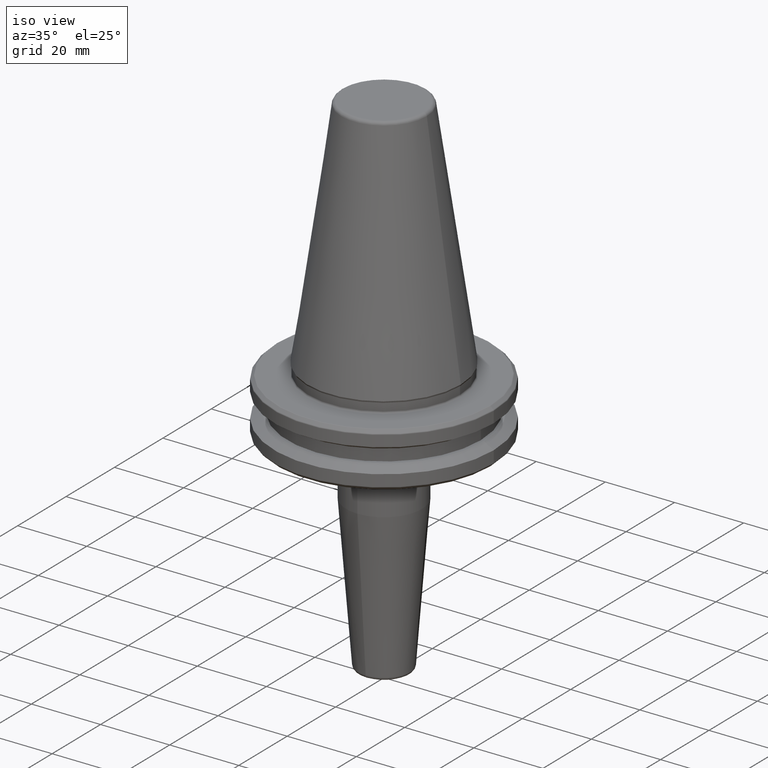
[diagram: clean part render]
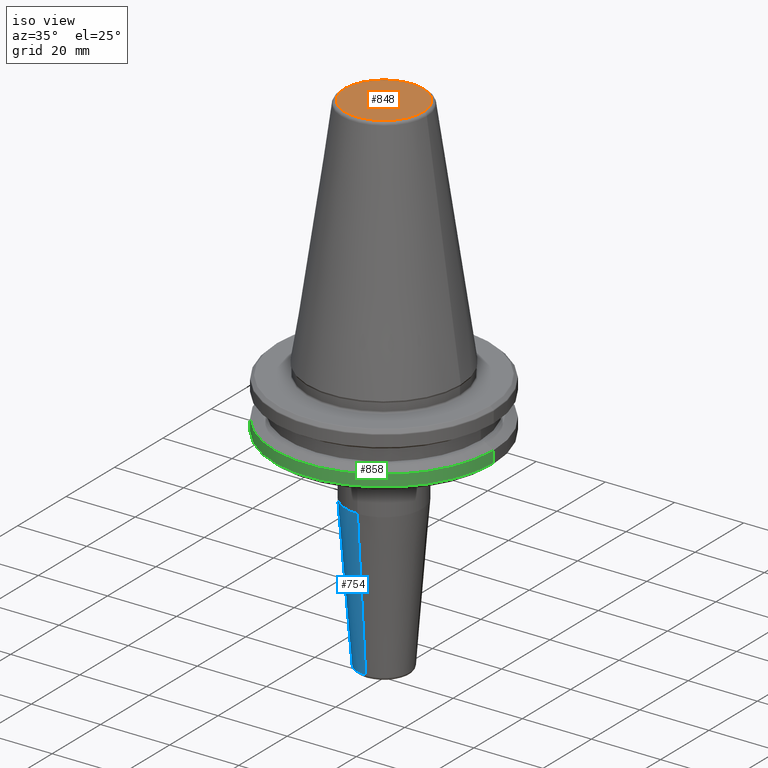
[diagram: same view with three faces highlighted in distinct colors, each labeled with its STEP entity id]
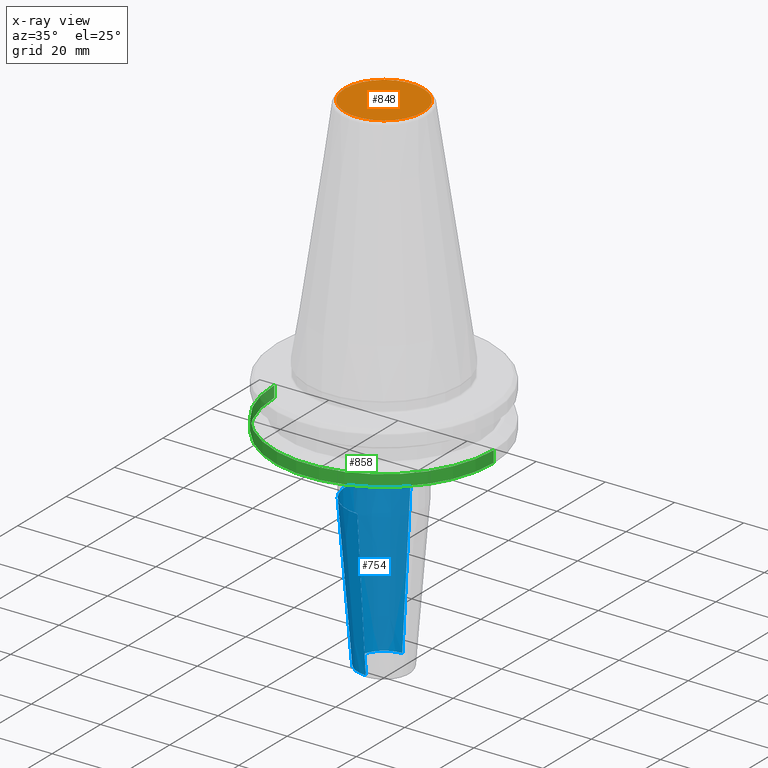
[diagram: x-ray of the same camera — body ghosted, the three highlighted faces saturated]
A machine part, iso view with three faces highlighted in distinct colors.
The next image is the same camera in x-ray (body ghosted, the three faces saturated) — at least one of them is partly hidden behind the body in this view.
Their STEP definitions:

[orange] entity #848 — the highlighted planar face has unit normal (0, -0, 1).
#76 = EDGE_CURVE ( 'NONE', #694, #282, #753, .T. ) ;
#107 = CARTESIAN_POINT ( 'NONE',  ( 0.0000000000000000000, 0.0000000000000000000, 68.40000000000000600 ) ) ;
#167 = FACE_OUTER_BOUND ( 'NONE', #310, .T. ) ;
#212 = DIRECTION ( 'NONE',  ( 1.000000000000000000, 0.0000000000000000000, 0.0000000000000000000 ) ) ;
#282 = VERTEX_POINT ( 'NONE', #327 ) ;
#310 = EDGE_LOOP ( 'NONE', ( #809, #1093 ) ) ;
#327 = CARTESIAN_POINT ( 'NONE',  ( -11.38516258961893100, 1.454871700296352000E-015, 68.40000000000000600 ) ) ;
#452 = AXIS2_PLACEMENT_3D ( 'NONE', #474, #1135, #563 ) ;
#474 = CARTESIAN_POINT ( 'NONE',  ( 0.0000000000000000000, -8.337524199435086500E-014, 68.39999999999999100 ) ) ;
#563 = DIRECTION ( 'NONE',  ( 1.000000000000000000, 0.0000000000000000000, 0.0000000000000000000 ) ) ;
#622 = CIRCLE ( 'NONE', #1229, 11.38516258961893100 ) ;
#694 = VERTEX_POINT ( 'NONE', #1122 ) ;
#753 = CIRCLE ( 'NONE', #935, 11.38516258961893100 ) ;
#781 = DIRECTION ( 'NONE',  ( -0.0000000000000000000, -0.0000000000000000000, 1.000000000000000000 ) ) ;
#796 = DIRECTION ( 'NONE',  ( -0.0000000000000000000, -0.0000000000000000000, 1.000000000000000000 ) ) ;
#809 = ORIENTED_EDGE ( 'NONE', *, *, #76, .T. ) ;
#848 = ADVANCED_FACE ( 'NONE', ( #167 ), #1035, .T. ) ;
#871 = DIRECTION ( 'NONE',  ( 1.000000000000000000, 0.0000000000000000000, 0.0000000000000000000 ) ) ;
#884 = CARTESIAN_POINT ( 'NONE',  ( 0.0000000000000000000, 0.0000000000000000000, 68.40000000000000600 ) ) ;
#935 = AXIS2_PLACEMENT_3D ( 'NONE', #884, #796, #871 ) ;
#1035 = PLANE ( 'NONE',  #452 ) ;
#1093 = ORIENTED_EDGE ( 'NONE', *, *, #1182, .T. ) ;
#1122 = CARTESIAN_POINT ( 'NONE',  ( 11.38516258961893100, 0.0000000000000000000, 68.40000000000000600 ) ) ;
#1135 = DIRECTION ( 'NONE',  ( 0.0000000000000000000, -0.0000000000000000000, 1.000000000000000000 ) ) ;
#1182 = EDGE_CURVE ( 'NONE', #282, #694, #622, .T. ) ;
#1229 = AXIS2_PLACEMENT_3D ( 'NONE', #107, #781, #212 ) ;

[blue] entity #754 — the highlighted conical surface has half-angle 4.5 deg.
#7 = EDGE_CURVE ( 'NONE', #1257, #1113, #1107, .T. ) ;
#22 = DIRECTION ( 'NONE',  ( 0.0000000000000000000, 1.000000000000000000, 0.0000000000000000000 ) ) ;
#31 = LINE ( 'NONE', #549, #1026 ) ;
#33 = CARTESIAN_POINT ( 'NONE',  ( 9.273670758604465400E-016, -7.572526842074919900, -79.07845909572785100 ) ) ;
#45 = EDGE_CURVE ( 'NONE', #556, #756, #338, .T. ) ;
#91 = CARTESIAN_POINT ( 'NONE',  ( 0.0000000000000000000, 7.572526842074919900, -79.07845909572785100 ) ) ;
#145 = EDGE_LOOP ( 'NONE', ( #332, #729, #498, #1164 ) ) ;
#296 = DIRECTION ( 'NONE',  ( 0.0000000000000000000, -0.07845909572784567900, 0.9969173337331278500 ) ) ;
#332 = ORIENTED_EDGE ( 'NONE', *, *, #660, .F. ) ;
#338 = CIRCLE ( 'NONE', #1095, 11.00000000000001100 ) ;
#362 = CARTESIAN_POINT ( 'NONE',  ( 0.0000000000000000000, -2.675592333722437400E-016, -79.07845909572785100 ) ) ;
#373 = DIRECTION ( 'NONE',  ( -0.0000000000000000000, 2.829168385244881300E-016, -1.000000000000000000 ) ) ;
#463 = DIRECTION ( 'NONE',  ( 0.0000000000000000000, -2.829168385244881300E-016, 1.000000000000000000 ) ) ;
#469 = VECTOR ( 'NONE', #296, 1000.000000000000100 ) ;
#498 = ORIENTED_EDGE ( 'NONE', *, *, #1143, .T. ) ;
#549 = CARTESIAN_POINT ( 'NONE',  ( 9.273670758604465400E-016, 7.572526842074919900, -79.07845909572785100 ) ) ;
#554 = CARTESIAN_POINT ( 'NONE',  ( 0.0000000000000000000, -2.675592333722437400E-016, -79.07845909572785100 ) ) ;
#556 = VERTEX_POINT ( 'NONE', #565 ) ;
#565 = CARTESIAN_POINT ( 'NONE',  ( 0.0000000000000000000, -11.00000000000002100, -35.52828342338863600 ) ) ;
#660 = EDGE_CURVE ( 'NONE', #1113, #756, #31, .T. ) ;
#697 = LINE ( 'NONE', #862, #469 ) ;
#729 = ORIENTED_EDGE ( 'NONE', *, *, #7, .F. ) ;
#754 = ADVANCED_FACE ( 'NONE', ( #1224 ), #1189, .T. ) ;
#756 = VERTEX_POINT ( 'NONE', #928 ) ;
#786 = CARTESIAN_POINT ( 'NONE',  ( 0.0000000000000000000, -1.258863725177652600E-014, -35.52828342338863600 ) ) ;
#810 = AXIS2_PLACEMENT_3D ( 'NONE', #554, #463, #1220 ) ;
#836 = DIRECTION ( 'NONE',  ( 0.0000000000000000000, 1.000000000000000000, 0.0000000000000000000 ) ) ;
#862 = CARTESIAN_POINT ( 'NONE',  ( 0.0000000000000000000, -7.572526842074919900, -79.07845909572785100 ) ) ;
#928 = CARTESIAN_POINT ( 'NONE',  ( 1.347111479062090000E-015, 11.00000000000000000, -35.52828342338863600 ) ) ;
#1026 = VECTOR ( 'NONE', #1215, 1000.000000000000100 ) ;
#1095 = AXIS2_PLACEMENT_3D ( 'NONE', #786, #1253, #22 ) ;
#1107 = CIRCLE ( 'NONE', #1132, 7.572526842074919900 ) ;
#1113 = VERTEX_POINT ( 'NONE', #91 ) ;
#1132 = AXIS2_PLACEMENT_3D ( 'NONE', #362, #373, #836 ) ;
#1143 = EDGE_CURVE ( 'NONE', #1257, #556, #697, .T. ) ;
#1164 = ORIENTED_EDGE ( 'NONE', *, *, #45, .T. ) ;
#1189 = CONICAL_SURFACE ( 'NONE', #810, 7.572526842074919900, 0.07853981633974530000 ) ;
#1215 = DIRECTION ( 'NONE',  ( 9.608468044710165900E-018, 0.07845909572784512400, 0.9969173337331278500 ) ) ;
#1220 = DIRECTION ( 'NONE',  ( 0.0000000000000000000, -1.000000000000000000, 0.0000000000000000000 ) ) ;
#1224 = FACE_OUTER_BOUND ( 'NONE', #145, .T. ) ;
#1253 = DIRECTION ( 'NONE',  ( -0.0000000000000000000, 2.829168385244881300E-016, -1.000000000000000000 ) ) ;
#1257 = VERTEX_POINT ( 'NONE', #33 ) ;

[green] entity #858 — the highlighted cylindrical surface (partial cylindrical patch) has radius 31.75 mm, axis along (-0, -0, 1).
#47 = EDGE_CURVE ( 'NONE', #743, #894, #1079, .T. ) ;
#72 = CARTESIAN_POINT ( 'NONE',  ( 0.0000000000000000000, 0.0000000000000000000, 113.5216080541959500 ) ) ;
#74 = VECTOR ( 'NONE', #185, 1000.000000000000000 ) ;
#166 = VERTEX_POINT ( 'NONE', #610 ) ;
#173 = DIRECTION ( 'NONE',  ( 1.000000000000000000, 0.0000000000000000000, 0.0000000000000000000 ) ) ;
#185 = DIRECTION ( 'NONE',  ( -0.0000000000000000000, -0.0000000000000000000, 1.000000000000000000 ) ) ;
#218 = VECTOR ( 'NONE', #501, 1000.000000000000000 ) ;
#225 = CARTESIAN_POINT ( 'NONE',  ( 0.0000000000000000000, 0.0000000000000000000, -17.93431457505076300 ) ) ;
#226 = VERTEX_POINT ( 'NONE', #692 ) ;
#273 = DIRECTION ( 'NONE',  ( -0.0000000000000000000, -0.0000000000000000000, 1.000000000000000000 ) ) ;
#319 = CARTESIAN_POINT ( 'NONE',  ( 0.0000000000000000000, 0.0000000000000000000, -14.62183664205671200 ) ) ;
#340 = ORIENTED_EDGE ( 'NONE', *, *, #973, .T. ) ;
#358 = EDGE_LOOP ( 'NONE', ( #388, #929, #340, #524 ) ) ;
#388 = ORIENTED_EDGE ( 'NONE', *, *, #1087, .F. ) ;
#392 = CARTESIAN_POINT ( 'NONE',  ( -31.75000000000000000, 3.888253587292846500E-015, 113.5216080541959500 ) ) ;
#403 = AXIS2_PLACEMENT_3D ( 'NONE', #72, #273, #173 ) ;
#501 = DIRECTION ( 'NONE',  ( -0.0000000000000000000, -0.0000000000000000000, 1.000000000000000000 ) ) ;
#524 = ORIENTED_EDGE ( 'NONE', *, *, #1244, .F. ) ;
#586 = DIRECTION ( 'NONE',  ( -0.0000000000000000000, -0.0000000000000000000, 1.000000000000000000 ) ) ;
#610 = CARTESIAN_POINT ( 'NONE',  ( -31.75000000000000000, 3.888253587292846500E-015, -14.62183664205671200 ) ) ;
#621 = DIRECTION ( 'NONE',  ( 1.000000000000000000, 0.0000000000000000000, 0.0000000000000000000 ) ) ;
#664 = CARTESIAN_POINT ( 'NONE',  ( 31.75000000000000000, 0.0000000000000000000, 113.5216080541959500 ) ) ;
#692 = CARTESIAN_POINT ( 'NONE',  ( 31.75000000000000000, 0.0000000000000000000, -14.62183664205671200 ) ) ;
#695 = DIRECTION ( 'NONE',  ( 1.000000000000000000, 0.0000000000000000000, 0.0000000000000000000 ) ) ;
#743 = VERTEX_POINT ( 'NONE', #1022 ) ;
#804 = CIRCLE ( 'NONE', #1140, 31.75000000000000000 ) ;
#858 = ADVANCED_FACE ( 'NONE', ( #1167 ), #869, .T. ) ;
#869 = CYLINDRICAL_SURFACE ( 'NONE', #403, 31.75000000000000000 ) ;
#894 = VERTEX_POINT ( 'NONE', #1235 ) ;
#899 = LINE ( 'NONE', #664, #74 ) ;
#929 = ORIENTED_EDGE ( 'NONE', *, *, #47, .T. ) ;
#973 = EDGE_CURVE ( 'NONE', #894, #226, #899, .T. ) ;
#1022 = CARTESIAN_POINT ( 'NONE',  ( -31.75000000000000000, 3.888253587292846500E-015, -17.93431457505076300 ) ) ;
#1079 = CIRCLE ( 'NONE', #1092, 31.75000000000000000 ) ;
#1087 = EDGE_CURVE ( 'NONE', #743, #166, #1212, .T. ) ;
#1092 = AXIS2_PLACEMENT_3D ( 'NONE', #225, #1184, #695 ) ;
#1140 = AXIS2_PLACEMENT_3D ( 'NONE', #319, #586, #621 ) ;
#1167 = FACE_OUTER_BOUND ( 'NONE', #358, .T. ) ;
#1184 = DIRECTION ( 'NONE',  ( -0.0000000000000000000, -0.0000000000000000000, 1.000000000000000000 ) ) ;
#1212 = LINE ( 'NONE', #392, #218 ) ;
#1235 = CARTESIAN_POINT ( 'NONE',  ( 31.75000000000000000, 0.0000000000000000000, -17.93431457505076300 ) ) ;
#1244 = EDGE_CURVE ( 'NONE', #166, #226, #804, .T. ) ;